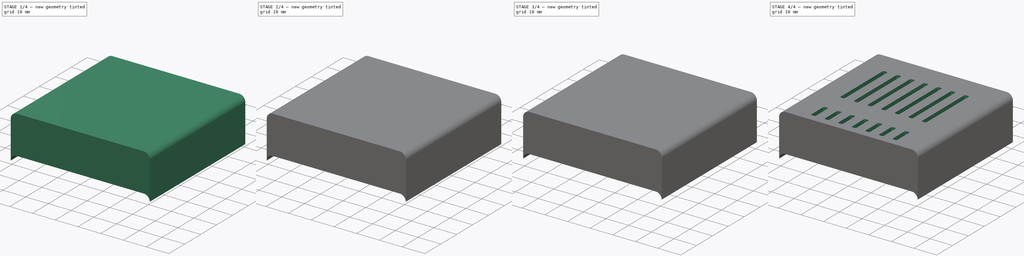
[diagram: build sequence overview — one tinted view per stage of 4, left to right]
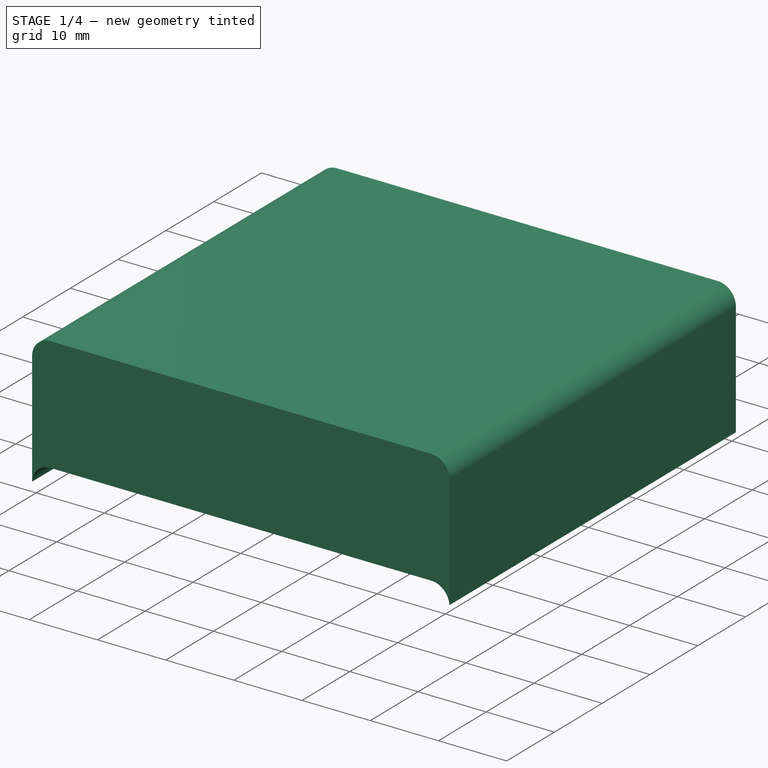
[diagram: stage 1 of 4 — iso view after this stage's code; geometry added in this stage tinted green]
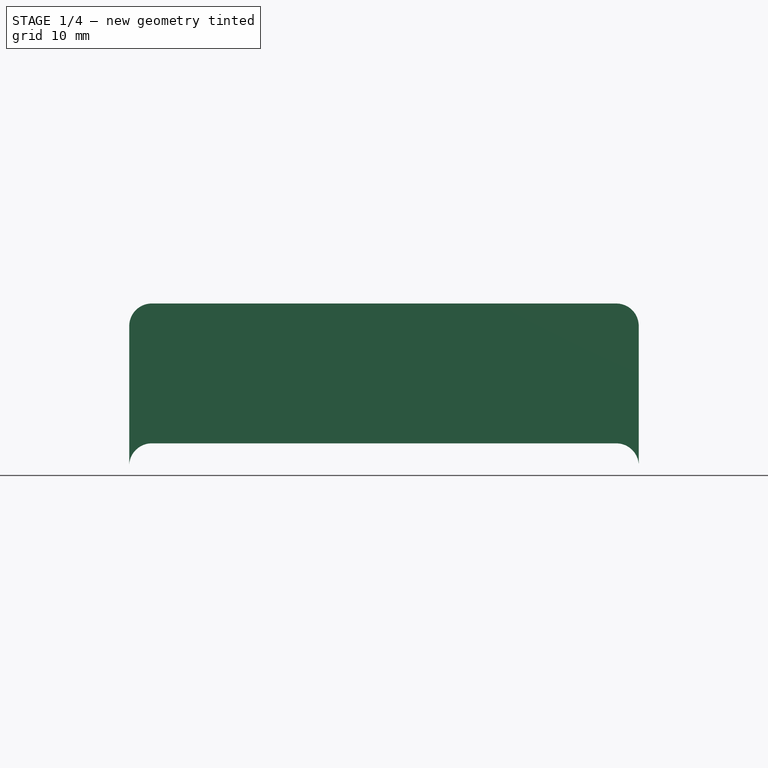
[diagram: stage 1 of 4 — front view after this stage's code; geometry added in this stage tinted green]
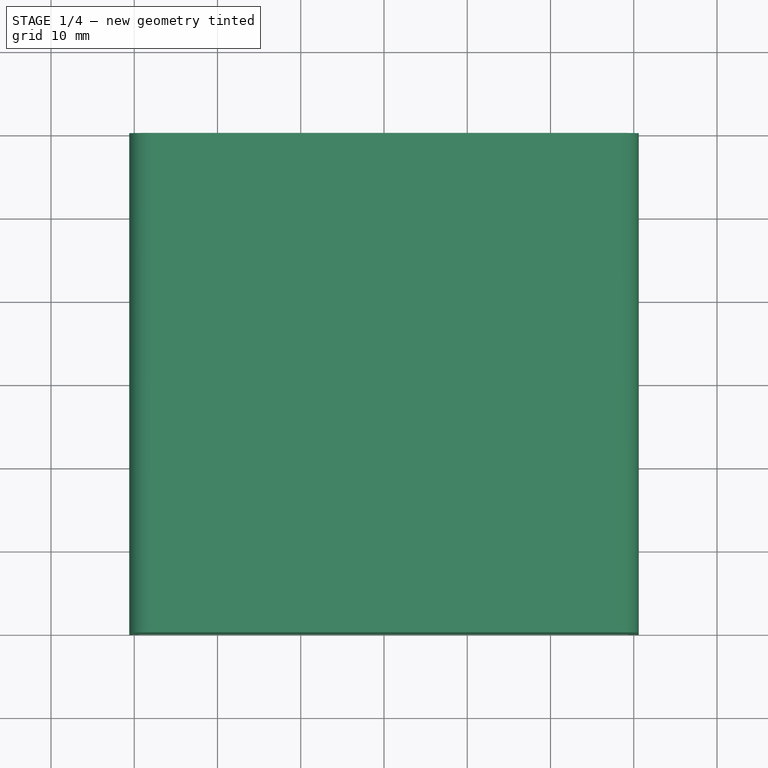
[diagram: stage 1 of 4 — top view after this stage's code; geometry added in this stage tinted green]
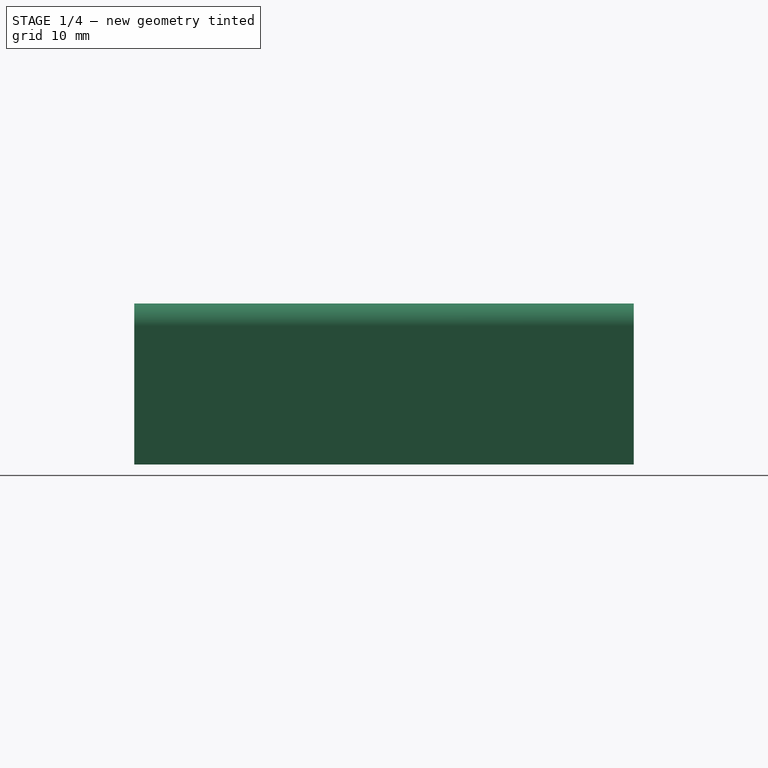
[diagram: stage 1 of 4 — right view after this stage's code; geometry added in this stage tinted green]
FCSTD DOCUMENT  (FreeCAD 0.16R4928 (Git))
Label: rpi_mote_base_v2
License: CreativeCommons Attribution-ShareAlike
LicenseURL: http://creativecommons.org/licenses/by-sa/4.0/
objects: Sketcher::SketchObject×6, PartDesign::Pad×4, Part::Feature×2, PartDesign::Pocket×2, PartDesign::Fillet×2, PartDesign::LinearPattern×1
note: 23 computed .brp shape members not serialized (recipe doc carries the construction recipe); baked Part::Feature solids carry a one-line shape summary decoded from their .brp

FEATURE [Part::Feature] Part__Feature  label="Raspberry Pi B+ Sleeve v1-1 VENT"
  Placement = pos=(0,-0.8,0) rot=(1,0,0;1.5708rad)
  shape: bbox 61.2 x 85.8 x 16.7 mm, 245 faces (baked)
FEATURE [Part::Feature] Part__Feature001  label="Raspberry Pi B+ Sleeve v1-1 VENT001"
  Placement = pos=(0,-0.8,0) rot=(1,0,0;1.5708rad)
  shape: bbox 61.2 x 2.6 x 16.7 mm, 45 faces (baked)
FEATURE [Sketcher::SketchObject] Sketch
  Placement = pos=(0,0,0) rot=(0,0.707107,0.707107;3.14159rad)
  sketch-geometry (9):
    g0: ArcOfCircle CenterX=-27.9 CenterY=22.4613 CenterZ=0 NormalX=0 NormalY=0 NormalZ=1 Radius=2.7 StartAngle=1.5708 EndAngle=3.14159
    g1: LineSegment StartX=-27.9 StartY=25.1613 StartZ=0 EndX=27.9 EndY=25.1613 EndZ=0
    g2: ArcOfCircle CenterX=27.9 CenterY=22.4613 CenterZ=0 NormalX=0 NormalY=0 NormalZ=1 Radius=2.7 StartAngle=6.28319 EndAngle=7.85398
    g3: LineSegment StartX=30.6 StartY=22.4613 StartZ=0 EndX=30.6 EndY=5.5 EndZ=0
    g4: LineSegment [constr] StartX=-30.6 StartY=5.5 StartZ=0 EndX=30.6 EndY=5.5 EndZ=0
    g5: ArcOfCircle CenterX=-27.9048 CenterY=5.66127 CenterZ=0 NormalX=0 NormalY=0 NormalZ=1 Radius=2.7 StartAngle=1.5708 EndAngle=3.20136
    g6: ArcOfCircle CenterX=27.9048 CenterY=5.66127 CenterZ=0 NormalX=0 NormalY=0 NormalZ=1 Radius=2.7 StartAngle=6.22342 EndAngle=7.85577
    g7: LineSegment StartX=27.9 StartY=8.36127 StartZ=0 EndX=-27.9048 EndY=8.36127 EndZ=0
    g8: LineSegment StartX=-30.6 StartY=5.5 StartZ=0 EndX=-30.6 EndY=22.4613 EndZ=0
  constraints (30):
    c: Coincident(g1,g0)
    c: Horizontal(g1)
    c: Tangent(g1,g0)
    c: Radius(g0) = 2.7
    c: Coincident(g2,g1)
    c: Coincident(g3,g2)
    c: Tangent(g3,g2)
    c: Vertical(g3)
    c: Equal(g2,g0)
    c: Tangent(g1,g2)
    c: Symmetric(g1,g0,g-2)
    c: Coincident(g4,g3)
    c: DistanceX(g4) = 61.2
    c: Coincident(g6,g3)
    c: Coincident(g7,g6)
    c: Horizontal(g7)
    c: Coincident(g5,g7)
    c: Equal(g5,g6)
    c: Equal(g6,g0)
    c: DistanceY(g1,g6) = -16.8
    c: DistanceY(g3) = 5.5
    c: Coincident(g8,g4)
    c: Vertical(g8)
    c: Coincident(g8,g0)
    c: Tangent(g8,g0)
    c: Tangent(g5,g7)
    c: Equal(g3,g8)
    c: Coincident(g4,g5)
    c: DistanceX(g6,g3) = 2.7
    c: Tangent(g7,g6)
FEATURE [PartDesign::Pad] Pad
  Length = 60
  Length2 = 100
  Placement = pos=(0,0,0) rot=(0,0.707107,0.707107;3.14159rad)
  Reversed = true
  Sketch = -> Sketch
  Type = 0
FEATURE [Sketcher::SketchObject] Sketch001
  ExternalGeometry = -> [Pad]
  Placement = pos=(0,0,8.36127) rot=(0,1,0;3.14159rad)
  Support = -> Pad [Face1]
  sketch-geometry (5):
    g0: LineSegment StartX=-27.9048 StartY=-2.5 StartZ=0 EndX=27.9 EndY=-2.5 EndZ=0
    g1: LineSegment StartX=27.9 StartY=-2.5 StartZ=0 EndX=27.9 EndY=-57.5 EndZ=0
    g2: LineSegment StartX=27.9 StartY=-57.5 StartZ=0 EndX=-27.9048 EndY=-57.5 EndZ=0
    g3: LineSegment StartX=-27.9048 StartY=-57.5 StartZ=0 EndX=-27.9048 EndY=-2.5 EndZ=0
    g4: GeomPoint [constr] X=27.9 Y=-30 Z=0
  constraints (13):
    c: Coincident(g0,g1)
    c: Coincident(g1,g2)
    c: Coincident(g2,g3)
    c: Coincident(g3,g0)
    c: Horizontal(g0)
    c: Horizontal(g2)
    c: Vertical(g3)
    c: PointOnObject(g1,g-4)
    c: PointOnObject(g0,g-3)
    c: DistanceY(g0,g1) = -55
    c: PointOnObject(g4,g-4)
    c: Symmetric(g-4,g-4,g4)
    c: Symmetric(g0,g1,g4)
FEATURE [PartDesign::Pocket] Pocket
  Length = 14
  Placement = pos=(0,0,0) rot=(0,0.707107,0.707107;3.14159rad)
  Sketch = -> Sketch001
  Type = 0
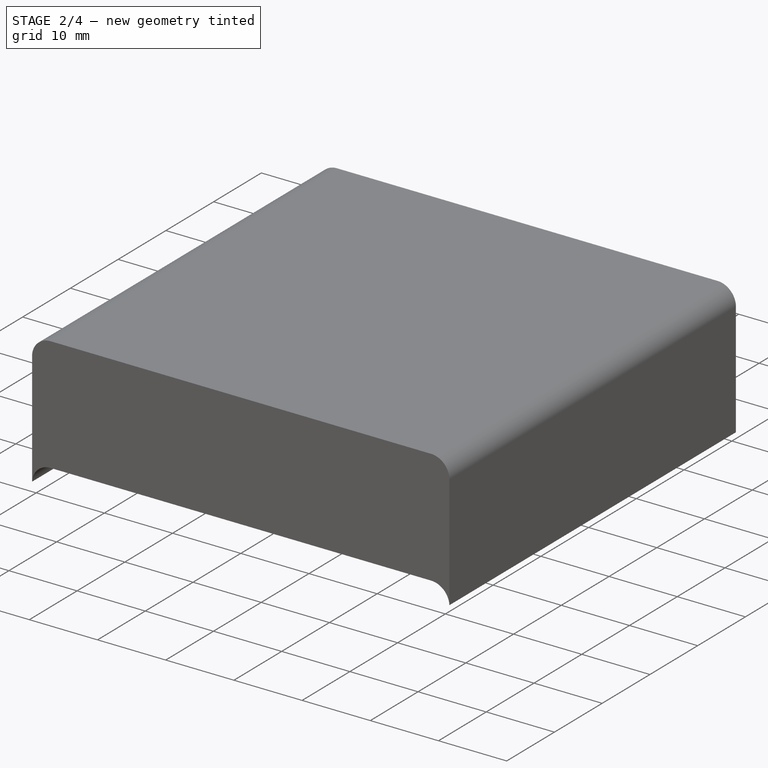
[diagram: stage 2 of 4 — iso view after this stage's code; geometry added in this stage tinted green]
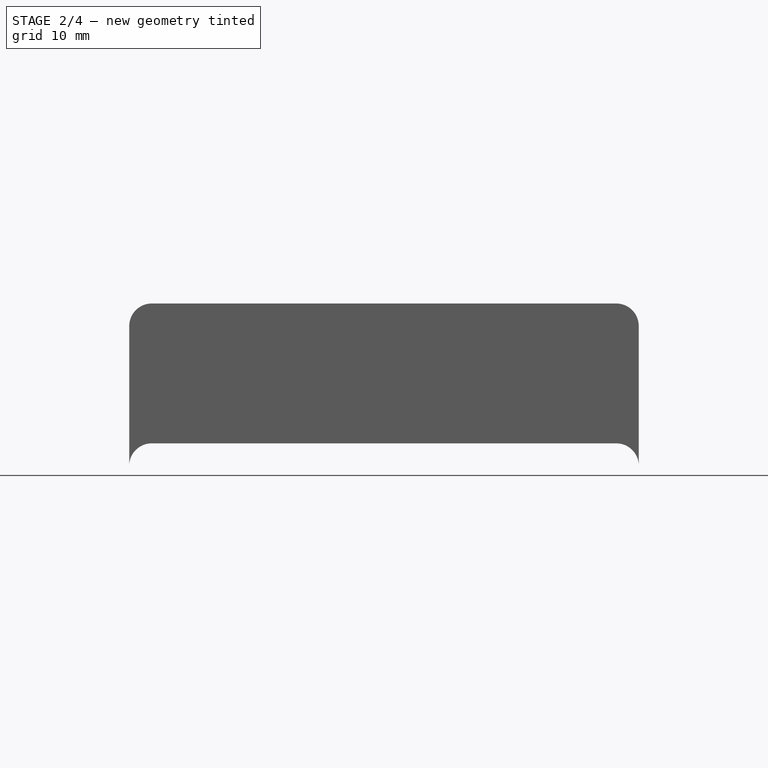
[diagram: stage 2 of 4 — front view after this stage's code; geometry added in this stage tinted green]
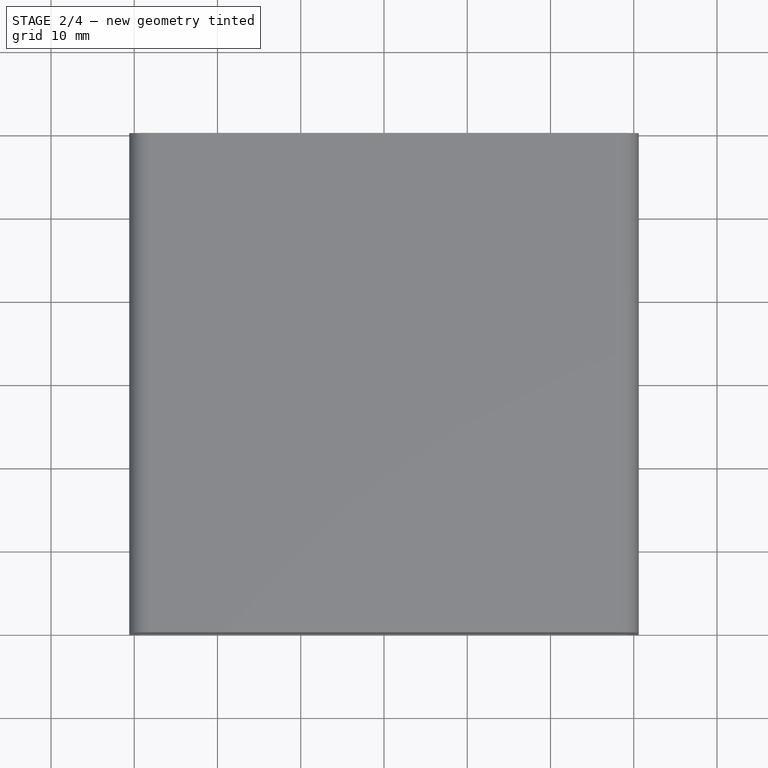
[diagram: stage 2 of 4 — top view after this stage's code; geometry added in this stage tinted green]
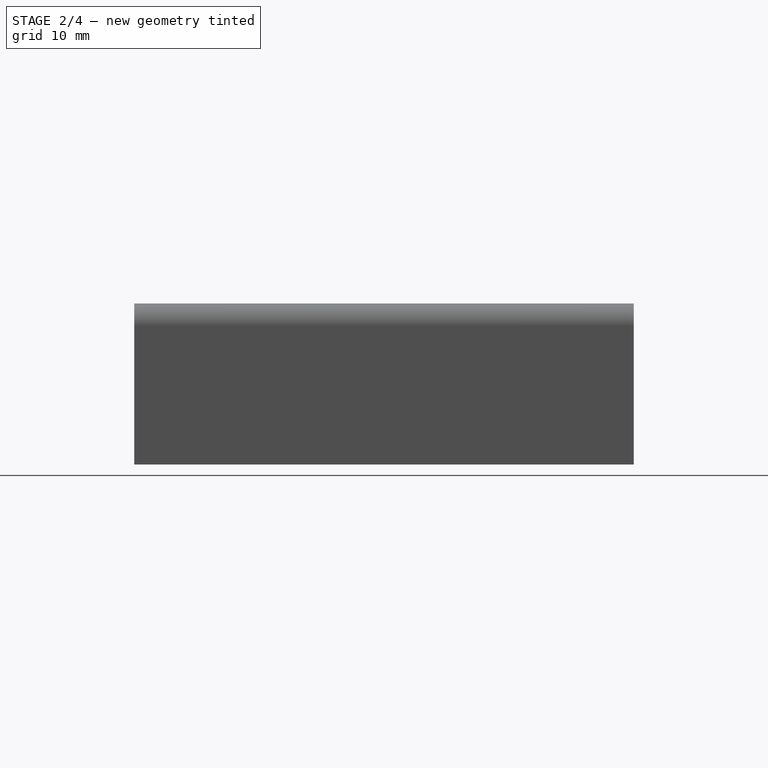
[diagram: stage 2 of 4 — right view after this stage's code; geometry added in this stage tinted green]
FEATURE [PartDesign::Fillet] Fillet
  Base = -> Pocket [Edge36,Edge33]
  Placement = pos=(0,0,0) rot=(0,0.707107,0.707107;3.14159rad)
  Radius = 2
FEATURE [Sketcher::SketchObject] Sketch002
  Placement = pos=(0,-57.5,0) rot=(0,0.707107,0.707107;3.14159rad)
  Support = -> Fillet [Face8]
  sketch-geometry (14):
    g0: LineSegment StartX=-18.955 StartY=22.36 StartZ=0 EndX=-17.085 EndY=22.36 EndZ=0
    g1: LineSegment StartX=-17.085 StartY=22.36 StartZ=0 EndX=-17.085 EndY=8.36 EndZ=0
    g2: LineSegment StartX=-17.085 StartY=8.36 StartZ=0 EndX=-18.955 EndY=8.36 EndZ=0
    g3: LineSegment StartX=-18.955 StartY=8.36 StartZ=0 EndX=-18.955 EndY=22.36 EndZ=0
    g4: LineSegment StartX=18.955 StartY=22.36 StartZ=0 EndX=17.085 EndY=22.36 EndZ=0
    g5: LineSegment StartX=17.085 StartY=22.36 StartZ=0 EndX=17.085 EndY=8.36 EndZ=0
    g6: LineSegment StartX=17.085 StartY=8.36 StartZ=0 EndX=18.955 EndY=8.36 EndZ=0
    g7: LineSegment StartX=18.955 StartY=8.36 StartZ=0 EndX=18.955 EndY=22.36 EndZ=0
    g8: LineSegment StartX=-0.935 StartY=22.36 StartZ=0 EndX=0.935 EndY=22.36 EndZ=0
    g9: LineSegment StartX=0.935 StartY=22.36 StartZ=0 EndX=0.935 EndY=8.36 EndZ=0
    g10: LineSegment StartX=0.935 StartY=8.36 StartZ=0 EndX=-0.935 EndY=8.36 EndZ=0
    g11: LineSegment StartX=-0.935 StartY=8.36 StartZ=0 EndX=-0.935 EndY=22.36 EndZ=0
    g12: LineSegment [constr] StartX=-17.085 StartY=8.36 StartZ=0 EndX=-0.935 EndY=8.36 EndZ=0
    g13: LineSegment [constr] StartX=0.935 StartY=8.36 StartZ=0 EndX=17.085 EndY=8.36 EndZ=0
  constraints (40):
    c: Coincident(g0,g1)
    c: Coincident(g1,g2)
    c: Coincident(g2,g3)
    c: Coincident(g3,g0)
    c: Horizontal(g0)
    c: Horizontal(g2)
    c: Vertical(g1)
    c: Vertical(g3)
    c: Coincident(g4,g5)
    c: Coincident(g5,g6)
    c: Coincident(g6,g7)
    c: Coincident(g7,g4)
    c: Horizontal(g4)
    c: Horizontal(g6)
    c: Vertical(g5)
    c: Vertical(g7)
    c: Coincident(g8,g9)
    c: Coincident(g9,g10)
    c: Coincident(g10,g11)
    c: Coincident(g11,g8)
    c: Horizontal(g8)
    c: Horizontal(g10)
    c: Vertical(g9)
    c: Vertical(g11)
    c: Coincident(g12,g1)
    c: Coincident(g12,g10)
    c: Horizontal(g12)
    c: Equal(g3,g11)
    c: Equal(g11,g7)
    c: Equal(g4,g8)
    c: Equal(g8,g0)
    c: Symmetric(g9,g10,g-2)
    c: DistanceX(g8) = 1.87
    c: Coincident(g13,g9)
    c: Coincident(g13,g5)
    c: Horizontal(g13)
    c: DistanceX(g13) = 16.15
    c: Equal(g12,g13)
    c: DistanceY(g10) = 8.36
    c: DistanceY(g11) = 14
FEATURE [PartDesign::Pad] Pad001
  Length = 10
  Length2 = 100
  Placement = pos=(0,0,0) rot=(0,0.707107,0.707107;3.14159rad)
  Sketch = -> Sketch002
  Type = 0
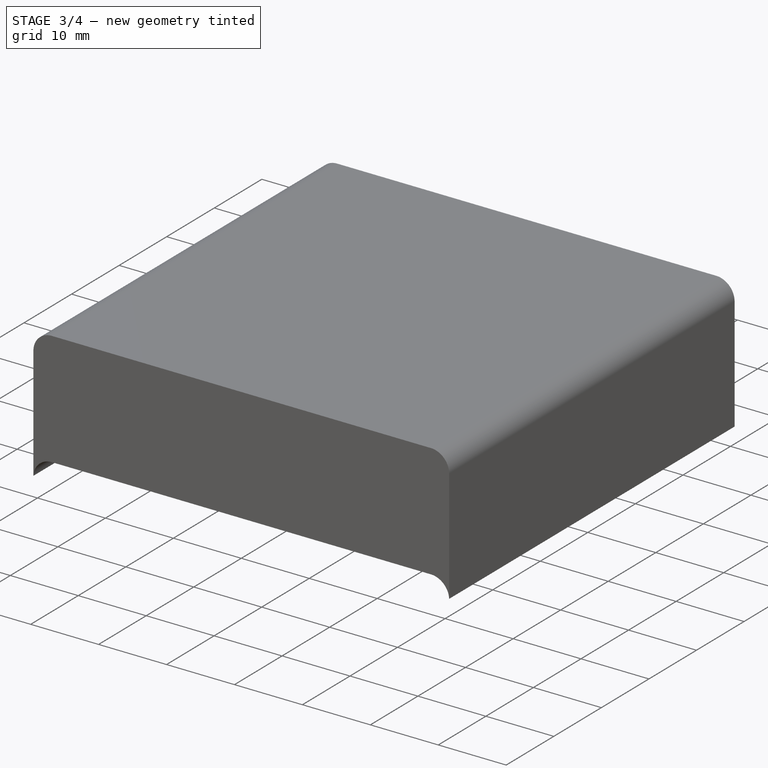
[diagram: stage 3 of 4 — iso view after this stage's code; geometry added in this stage tinted green]
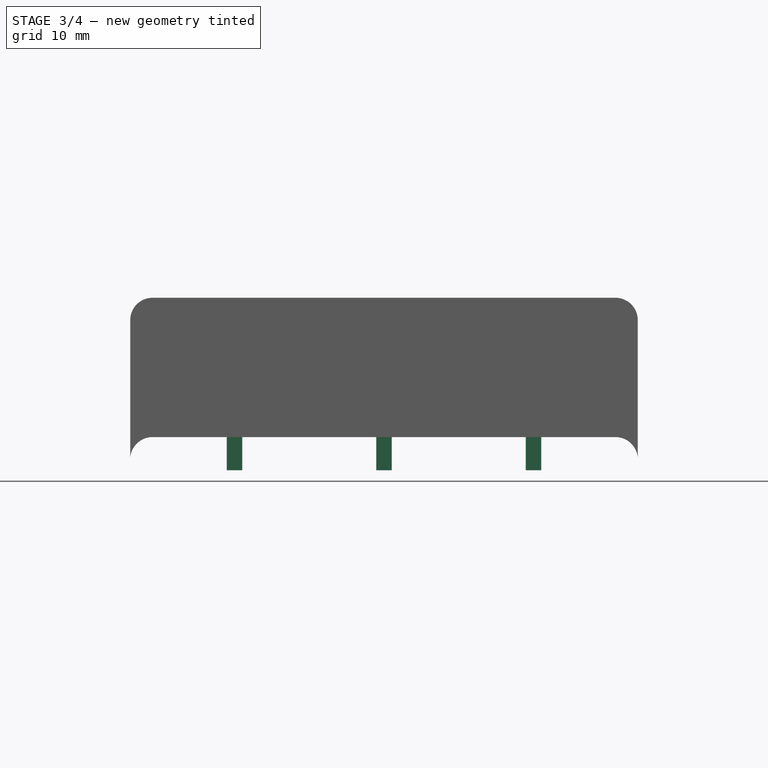
[diagram: stage 3 of 4 — front view after this stage's code; geometry added in this stage tinted green]
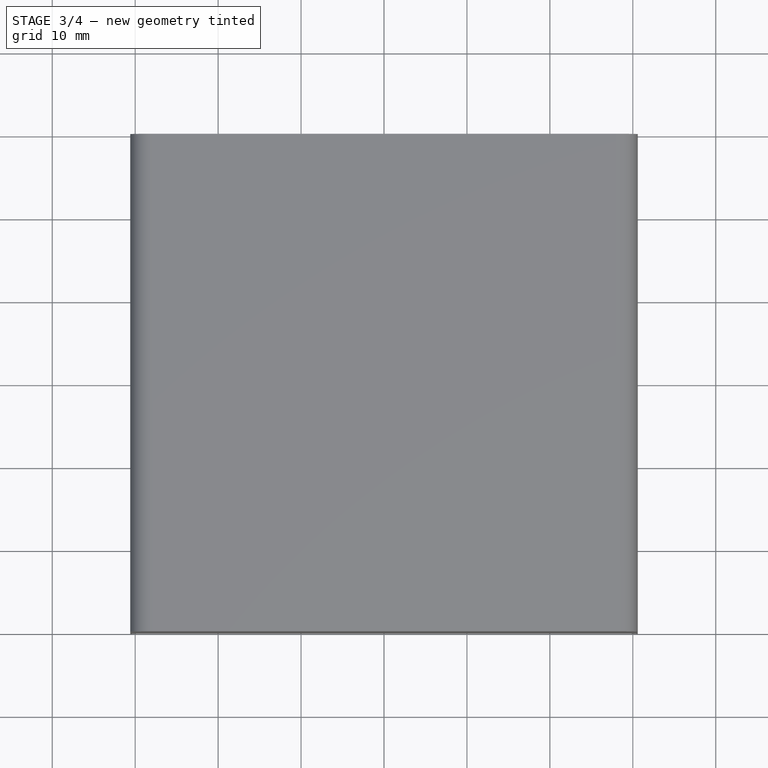
[diagram: stage 3 of 4 — top view after this stage's code; geometry added in this stage tinted green]
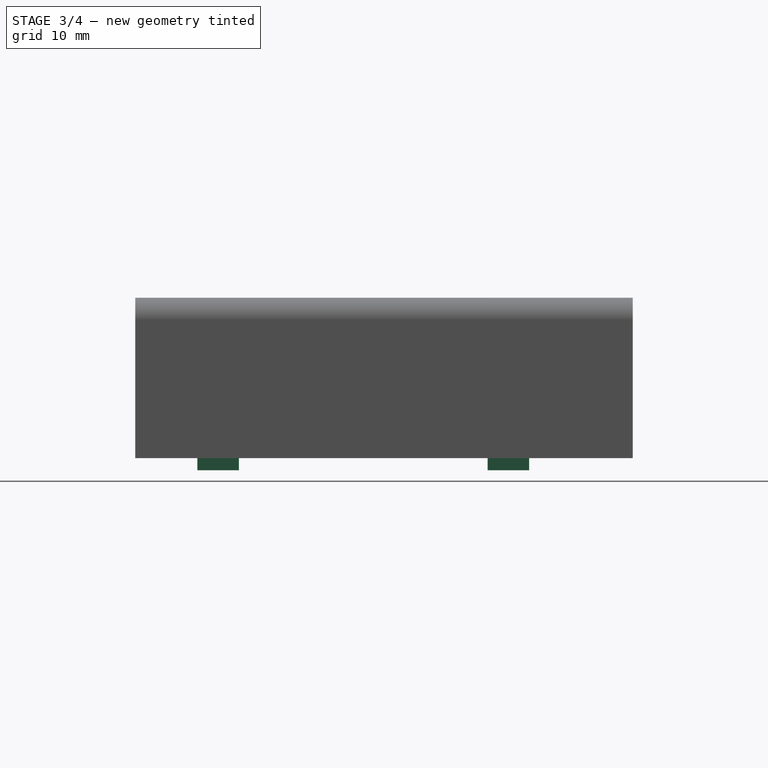
[diagram: stage 3 of 4 — right view after this stage's code; geometry added in this stage tinted green]
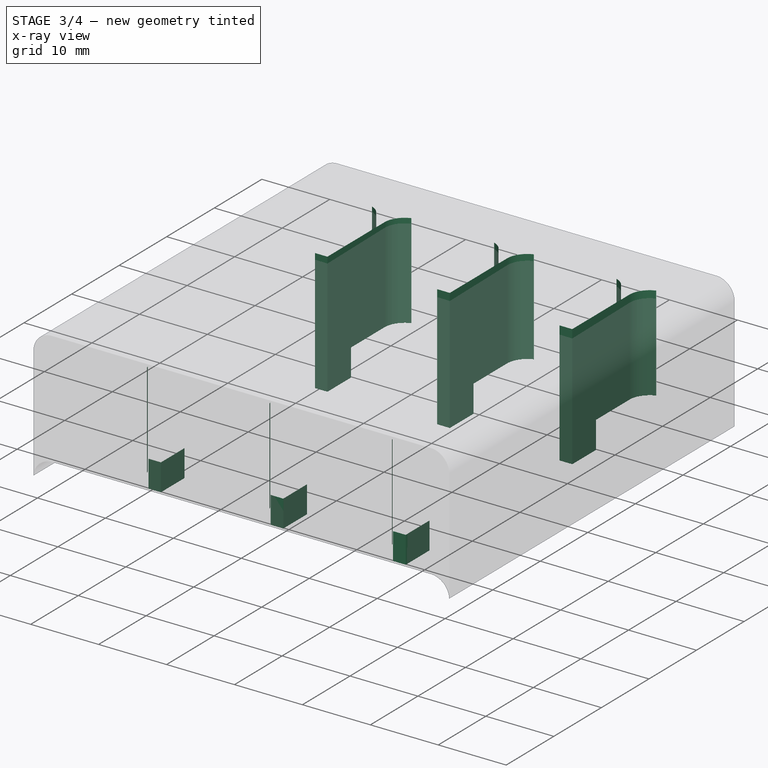
[diagram: stage 3 of 4 — x-ray composite at the iso view; earlier geometry ghosted, this stage's added geometry solid]
FEATURE [Sketcher::SketchObject] Sketch003
  Placement = pos=(0,-2.5,0) rot=(0,-0.707107,0.707107;3.14159rad)
  Support = -> Pad001 [Face1]
  sketch-geometry (14):
    g0: LineSegment StartX=-0.935 StartY=-8.36 StartZ=0 EndX=0.935 EndY=-8.36 EndZ=0
    g1: LineSegment StartX=0.935 StartY=-8.36 StartZ=0 EndX=0.935 EndY=-22.36 EndZ=0
    g2: LineSegment StartX=0.935 StartY=-22.36 StartZ=0 EndX=-0.935 EndY=-22.36 EndZ=0
    g3: LineSegment StartX=-0.935 StartY=-22.36 StartZ=0 EndX=-0.935 EndY=-8.36 EndZ=0
    g4: LineSegment StartX=17.085 StartY=-8.36 StartZ=0 EndX=18.955 EndY=-8.36 EndZ=0
    g5: LineSegment StartX=18.955 StartY=-8.36 StartZ=0 EndX=18.955 EndY=-22.36 EndZ=0
    g6: LineSegment StartX=18.955 StartY=-22.36 StartZ=0 EndX=17.085 EndY=-22.36 EndZ=0
    g7: LineSegment StartX=17.085 StartY=-22.36 StartZ=0 EndX=17.085 EndY=-8.36 EndZ=0
    g8: LineSegment StartX=-18.955 StartY=-8.36 StartZ=0 EndX=-17.085 EndY=-8.36 EndZ=0
    g9: LineSegment StartX=-17.085 StartY=-8.36 StartZ=0 EndX=-17.085 EndY=-22.36 EndZ=0
    g10: LineSegment StartX=-17.085 StartY=-22.36 StartZ=0 EndX=-18.955 EndY=-22.36 EndZ=0
    g11: LineSegment StartX=-18.955 StartY=-22.36 StartZ=0 EndX=-18.955 EndY=-8.36 EndZ=0
    g12: LineSegment [constr] StartX=-0.935 StartY=-22.36 StartZ=0 EndX=-17.085 EndY=-22.36 EndZ=0
    g13: LineSegment [constr] StartX=0.935 StartY=-22.36 StartZ=0 EndX=17.085 EndY=-22.36 EndZ=0
  constraints (40):
    c: Coincident(g0,g1)
    c: Coincident(g1,g2)
    c: Coincident(g2,g3)
    c: Coincident(g3,g0)
    c: Horizontal(g0)
    c: Horizontal(g2)
    c: Vertical(g1)
    c: Vertical(g3)
    c: Coincident(g4,g5)
    c: Coincident(g5,g6)
    c: Coincident(g6,g7)
    c: Coincident(g7,g4)
    c: Horizontal(g4)
    c: Horizontal(g6)
    c: Vertical(g5)
    c: Vertical(g7)
    c: Coincident(g8,g9)
    c: Coincident(g9,g10)
    c: Coincident(g10,g11)
    c: Coincident(g11,g8)
    c: Horizontal(g8)
    c: Horizontal(g10)
    c: Vertical(g9)
    c: Vertical(g11)
    c: Equal(g10,g2)
    c: Equal(g2,g6)
    c: Equal(g5,g1)
    c: Equal(g1,g9)
    c: DistanceX(g2) = -1.87
    c: Symmetric(g1,g2,g-2)
    c: Coincident(g12,g2)
    c: Coincident(g12,g9)
    c: Horizontal(g12)
    c: Coincident(g13,g1)
    c: Coincident(g13,g6)
    c: Horizontal(g13)
    c: DistanceX(g13) = 16.15
    c: DistanceY(g3) = 14
    c: DistanceY(g0) = -8.36
    c: Equal(g12,g13)
FEATURE [PartDesign::Pad] Pad002
  Length = 15
  Length2 = 100
  Placement = pos=(0,0,0) rot=(0,0.707107,0.707107;3.14159rad)
  Sketch = -> Sketch003
  Type = 0
FEATURE [Sketcher::SketchObject] Sketch004
  ExternalGeometry = -> [Pad002]
  Placement = pos=(0,0,8.36) rot=(0,1,0;3.14159rad)
  Support = -> Pad002 [Face39]
  sketch-geometry (24):
    g0: LineSegment StartX=-0.935 StartY=-47.5 StartZ=0 EndX=0.935 EndY=-47.5 EndZ=0
    g1: LineSegment StartX=0.935 StartY=-47.5 StartZ=0 EndX=0.935 EndY=-52.5 EndZ=0
    g2: LineSegment StartX=0.935 StartY=-52.5 StartZ=0 EndX=-0.935 EndY=-52.5 EndZ=0
    g3: LineSegment StartX=-0.935 StartY=-52.5 StartZ=0 EndX=-0.935 EndY=-47.5 EndZ=0
    g4: LineSegment StartX=-18.955 StartY=-47.5 StartZ=0 EndX=-17.085 EndY=-47.5 EndZ=0
    g5: LineSegment StartX=-17.085 StartY=-47.5 StartZ=0 EndX=-17.085 EndY=-52.5 EndZ=0
    g6: LineSegment StartX=-17.085 StartY=-52.5 StartZ=0 EndX=-18.955 EndY=-52.5 EndZ=0
    g7: LineSegment StartX=-18.955 StartY=-52.5 StartZ=0 EndX=-18.955 EndY=-47.5 EndZ=0
    g8: LineSegment StartX=17.085 StartY=-47.5 StartZ=0 EndX=18.955 EndY=-47.5 EndZ=0
    g9: LineSegment StartX=18.955 StartY=-47.5 StartZ=0 EndX=18.955 EndY=-52.5 EndZ=0
    g10: LineSegment StartX=18.955 StartY=-52.5 StartZ=0 EndX=17.085 EndY=-52.5 EndZ=0
    g11: LineSegment StartX=17.085 StartY=-52.5 StartZ=0 EndX=17.085 EndY=-47.5 EndZ=0
    g12: LineSegment StartX=-18.955 StartY=-12.5 StartZ=0 EndX=-17.085 EndY=-12.5 EndZ=0
    g13: LineSegment StartX=-17.085 StartY=-12.5 StartZ=0 EndX=-17.085 EndY=-17.5 EndZ=0
    g14: LineSegment StartX=-17.085 StartY=-17.5 StartZ=0 EndX=-18.955 EndY=-17.5 EndZ=0
    g15: LineSegment StartX=-18.955 StartY=-17.5 StartZ=0 EndX=-18.955 EndY=-12.5 EndZ=0
    g16: LineSegment StartX=-0.935 StartY=-12.5 StartZ=0 EndX=0.935 EndY=-12.5 EndZ=0
    g17: LineSegment StartX=0.935 StartY=-12.5 StartZ=0 EndX=0.935 EndY=-17.5 EndZ=0
    g18: LineSegment StartX=0.935 StartY=-17.5 StartZ=0 EndX=-0.935 EndY=-17.5 EndZ=0
    g19: LineSegment StartX=-0.935 StartY=-17.5 StartZ=0 EndX=-0.935 EndY=-12.5 EndZ=0
    g20: LineSegment StartX=17.085 StartY=-12.5 StartZ=0 EndX=18.955 EndY=-12.5 EndZ=0
    g21: LineSegment StartX=18.955 StartY=-12.5 StartZ=0 EndX=18.955 EndY=-17.5 EndZ=0
    g22: LineSegment StartX=18.955 StartY=-17.5 StartZ=0 EndX=17.085 EndY=-17.5 EndZ=0
    g23: LineSegment StartX=17.085 StartY=-17.5 StartZ=0 EndX=17.085 EndY=-12.5 EndZ=0
  constraints (66):
    c: Coincident(g0,g1)
    c: Coincident(g1,g2)
    c: Coincident(g2,g3)
    c: Coincident(g3,g0)
    c: Horizontal(g0)
    c: Horizontal(g2)
    c: Vertical(g1)
    c: Vertical(g3)
    c: Coincident(g4,g5)
    c: Coincident(g5,g6)
    c: Coincident(g6,g7)
    c: Coincident(g7,g4)
    c: Horizontal(g4)
    c: Horizontal(g6)
    c: Vertical(g5)
    c: Vertical(g7)
    c: Coincident(g8,g9)
    c: Coincident(g9,g10)
    c: Coincident(g10,g11)
    c: Coincident(g11,g8)
    c: Horizontal(g8)
    c: Horizontal(g10)
    c: Vertical(g9)
    c: Vertical(g11)
    c: Coincident(g12,g13)
    c: Coincident(g13,g14)
    c: Coincident(g14,g15)
    c: Coincident(g15,g12)
    c: Horizontal(g12)
    c: Horizontal(g14)
    c: Vertical(g13)
    c: Vertical(g15)
    c: Coincident(g16,g17)
    c: Coincident(g17,g18)
    c: Coincident(g18,g19)
    c: Coincident(g19,g16)
    c: Horizontal(g16)
    c: Horizontal(g18)
    c: Vertical(g17)
    c: Vertical(g19)
    c: Coincident(g20,g21)
    c: Coincident(g21,g22)
    c: Coincident(g22,g23)
    c: Coincident(g23,g20)
    c: Horizontal(g20)
    c: Horizontal(g22)
    c: Vertical(g21)
    c: Vertical(g23)
    c: Coincident(g-3,g13)
    c: Equal(g14,g18)
    c: Equal(g18,g22)
    c: Equal(g22,g4)
    c: Equal(g4,g0)
    c: Equal(g0,g8)
    c: Equal(g17,g5)
    c: Equal(g5,g13)
    c: Equal(g13,g21)
    c: Equal(g21,g1)
    c: Equal(g1,g9)
    c: Coincident(g4,g-6)
    c: Coincident(g4,g-6)
    c: Coincident(g0,g-7)
    c: Coincident(g8,g-8)
    c: Coincident(g18,g-4)
    c: Coincident(g22,g-5)
    c: DistanceY(g3) = 5
FEATURE [PartDesign::Pad] Pad003
  Length = 4
  Length2 = 100
  Placement = pos=(0,0,0) rot=(0,0.707107,0.707107;3.14159rad)
  Sketch = -> Sketch004
  Type = 0
FEATURE [PartDesign::Fillet] Fillet001
  Base = -> Pad003 [Edge17,Edge13,Edge9,Edge15,Edge11,Edge7,Edge40,Edge36,Edge32,Edge38,Edge34,Edge30]
  Placement = pos=(0,0,0) rot=(0,0.707107,0.707107;3.14159rad)
  Radius = 3
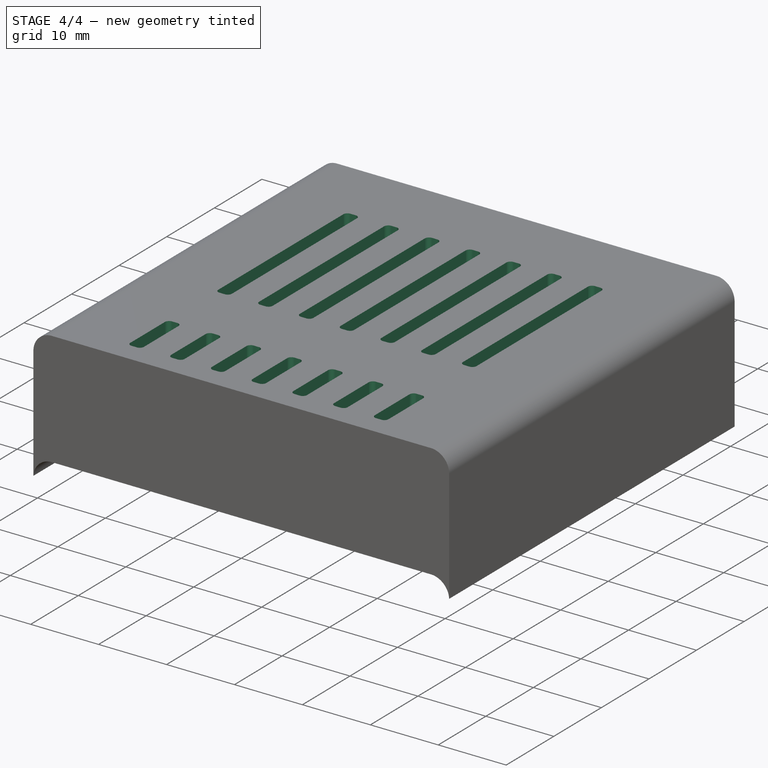
[diagram: stage 4 of 4 — iso view after this stage's code; geometry added in this stage tinted green]
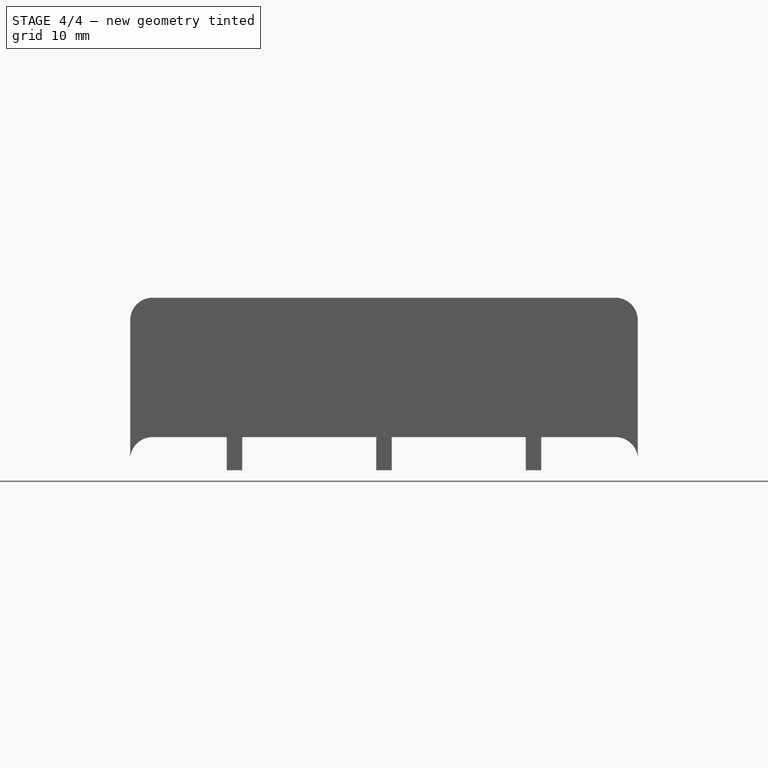
[diagram: stage 4 of 4 — front view after this stage's code; geometry added in this stage tinted green]
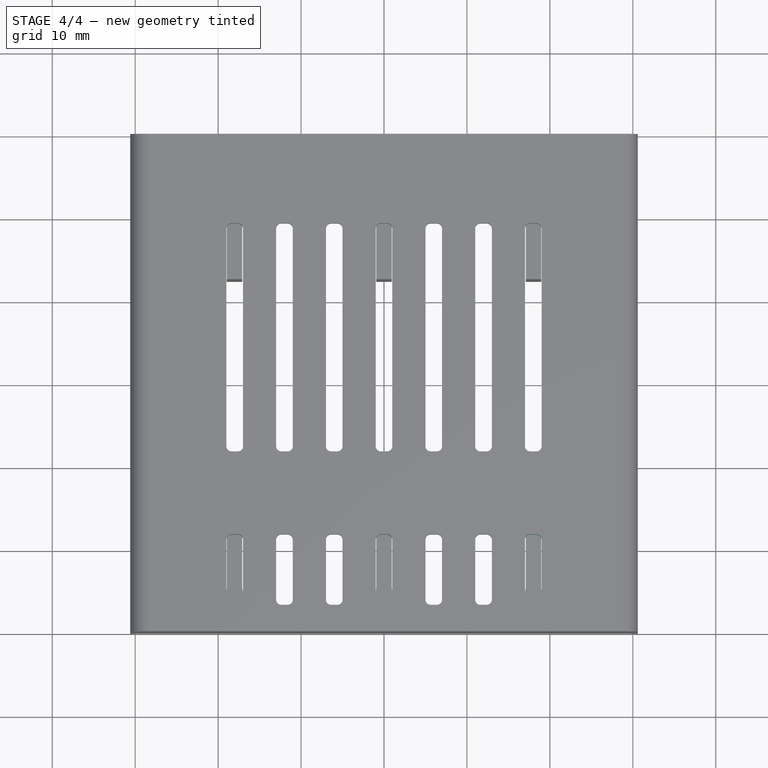
[diagram: stage 4 of 4 — top view after this stage's code; geometry added in this stage tinted green]
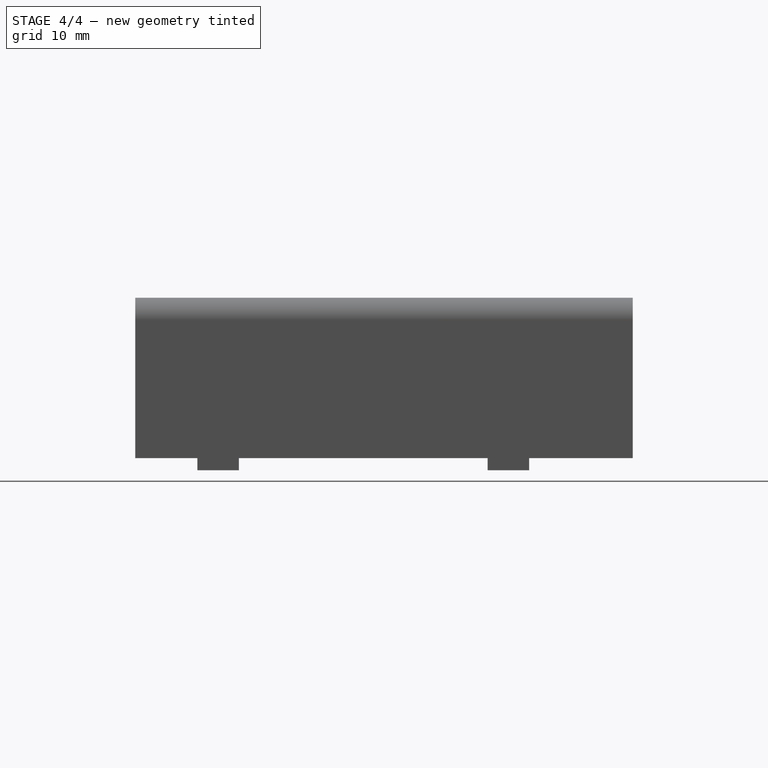
[diagram: stage 4 of 4 — right view after this stage's code; geometry added in this stage tinted green]
FEATURE [Sketcher::SketchObject] Sketch005
  Placement = pos=(0,0,25.1613) rot=(0,0,1;0rad)
  Support = -> Fillet001 [Face41]
  sketch-geometry (21):
    g0: LineSegment [constr] StartX=17 StartY=-11.4749 StartZ=0 EndX=19 EndY=-11.4749 EndZ=0
    g1: LineSegment StartX=19 StartY=-11.4749 StartZ=0 EndX=19 EndY=-37.7439 EndZ=0
    g2: LineSegment [constr] StartX=19 StartY=-37.7439 StartZ=0 EndX=17 EndY=-37.7439 EndZ=0
    g3: LineSegment StartX=17 StartY=-37.7439 StartZ=0 EndX=17 EndY=-11.4749 EndZ=0
    g4: ArcOfCircle CenterX=17.6147 CenterY=-37.6835 CenterZ=0 NormalX=0 NormalY=0 NormalZ=1 Radius=0.617617 StartAngle=3.23961 EndAngle=4.71239
    g5: LineSegment StartX=17.6147 StartY=-38.3011 StartZ=0 EndX=18.3853 EndY=-38.3011 EndZ=0
    g6: ArcOfCircle CenterX=18.3853 CenterY=-37.6835 CenterZ=0 NormalX=0 NormalY=0 NormalZ=1 Radius=0.617615 StartAngle=4.71239 EndAngle=6.18517
    g7: LineSegment StartX=17.6147 StartY=-10.7968 StartZ=0 EndX=18.3853 EndY=-10.7968 EndZ=0
    g8: ArcOfCircle CenterX=17.6147 CenterY=-11.4145 CenterZ=0 NormalX=0 NormalY=0 NormalZ=1 Radius=0.617617 StartAngle=1.5708 EndAngle=3.23962
    g9: ArcOfCircle CenterX=18.3853 CenterY=-11.4145 CenterZ=0 NormalX=0 NormalY=0 NormalZ=1 Radius=0.617617 StartAngle=6.18516 EndAngle=7.85398
    g10: LineSegment [constr] StartX=17 StartY=-48.8596 StartZ=0 EndX=19 EndY=-48.8596 EndZ=0
    g11: LineSegment StartX=19 StartY=-48.8596 StartZ=0 EndX=19 EndY=-56.2435 EndZ=0
    g12: LineSegment [constr] StartX=19 StartY=-56.2435 StartZ=0 EndX=17 EndY=-56.2435 EndZ=0
    g13: LineSegment StartX=17 StartY=-56.2435 StartZ=0 EndX=17 EndY=-48.8596 EndZ=0
    g14: LineSegment StartX=17.6147 StartY=-48.3024 StartZ=0 EndX=18.3853 EndY=-48.3024 EndZ=0
    g15: LineSegment StartX=17.6146 StartY=-56.8006 StartZ=0 EndX=18.3853 EndY=-56.8006 EndZ=0
    g16: ArcOfCircle CenterX=18.3853 CenterY=-48.92 CenterZ=0 NormalX=0 NormalY=0 NormalZ=1 Radius=0.617617 StartAngle=0.0980152 EndAngle=1.5708
    g17: ArcOfCircle CenterX=17.6146 CenterY=-48.92 CenterZ=0 NormalX=0 NormalY=0 NormalZ=1 Radius=0.617617 StartAngle=1.57079 EndAngle=3.04358
    g18: ArcOfCircle CenterX=18.3853 CenterY=-56.183 CenterZ=0 NormalX=0 NormalY=0 NormalZ=1 Radius=0.617617 StartAngle=4.71238 EndAngle=6.18517
    g19: ArcOfCircle CenterX=17.6146 CenterY=-56.183 CenterZ=0 NormalX=0 NormalY=0 NormalZ=1 Radius=0.617617 StartAngle=3.23961 EndAngle=4.71239
    g20: LineSegment [constr] StartX=19 StartY=-48.8596 StartZ=0 EndX=19 EndY=-37.7439 EndZ=0
  constraints (67):
    c: Coincident(g0,g1)
    c: Coincident(g1,g2)
    c: Coincident(g2,g3)
    c: Coincident(g3,g0)
    c: Horizontal(g0)
    c: Horizontal(g2)
    c: Vertical(g1)
    c: Vertical(g3)
    c: DistanceX(g2) = -2
    c: Coincident(g4,g2)
    c: DistanceY(g1) = -37.7439
    c: Coincident(g5,g4)
    c: Horizontal(g5)
    c: Coincident(g6,g5)
    c: Coincident(g6,g1)
    c: Tangent(g5,g6)
    c: Tangent(g5,g4)
    c: DistanceY(g5,g1) = 0.557178
    c: Radius(g4) = 0.617617
    c: Horizontal(g7)
    c: Coincident(g8,g0)
    c: Coincident(g8,g7)
    c: Coincident(g9,g7)
    c: Coincident(g9,g0)
    c: Tangent(g7,g9)
    c: Tangent(g7,g8)
    c: Equal(g7,g5)
    c: Equal(g4,g8)
    c: Equal(g8,g9)
    c: DistanceX(g5) = 0.770696
    c: Equal(g7,g5)
    c: DistanceX(g0) = 17
    c: DistanceY(g1) = -26.269
    c: Coincident(g10,g11)
    c: Coincident(g11,g12)
    c: Coincident(g12,g13)
    c: Coincident(g13,g10)
    c: Horizontal(g10)
    c: Horizontal(g12)
    c: Vertical(g11)
    c: Vertical(g13)
    c: Horizontal(g14)
    c: Horizontal(g15)
    c: Coincident(g16,g14)
    c: Coincident(g16,g10)
    c: Coincident(g17,g14)
    c: Coincident(g17,g10)
    c: Coincident(g18,g15)
    c: Coincident(g18,g11)
    c: Coincident(g19,g12)
    c: Coincident(g19,g15)
    c: Equal(g15,g14)
    c: Equal(g19,g18)
    c: Equal(g18,g16)
    c: Equal(g16,g17)
    c: Equal(g17,g4)
    c: Equal(g5,g14)
    c: Tangent(g14,g16)
    c: Tangent(g17,g14)
    c: Tangent(g19,g15)
    c: Coincident(g20,g10)
    c: Coincident(g20,g1)
    c: Vertical(g20)
    c: DistanceY(g14,g10) = -0.557178
    c: DistanceY(g11,g15) = -0.557178
    c: DistanceY(g20) = 11.1157
    c: DistanceY(g11) = -7.38385
FEATURE [PartDesign::Pocket] Pocket001
  Length = 2.8
  Placement = pos=(0,0,0) rot=(0,0.707107,0.707107;3.14159rad)
  Sketch = -> Sketch005
  Type = 0
FEATURE [PartDesign::LinearPattern] LinearPattern
  Direction = -> Pocket001 [Face55]
  Length = 36
  Occurrences = 7
  Originals = -> [Pocket001]
  Placement = pos=(0,0,0) rot=(0,0.707107,0.707107;3.14159rad)
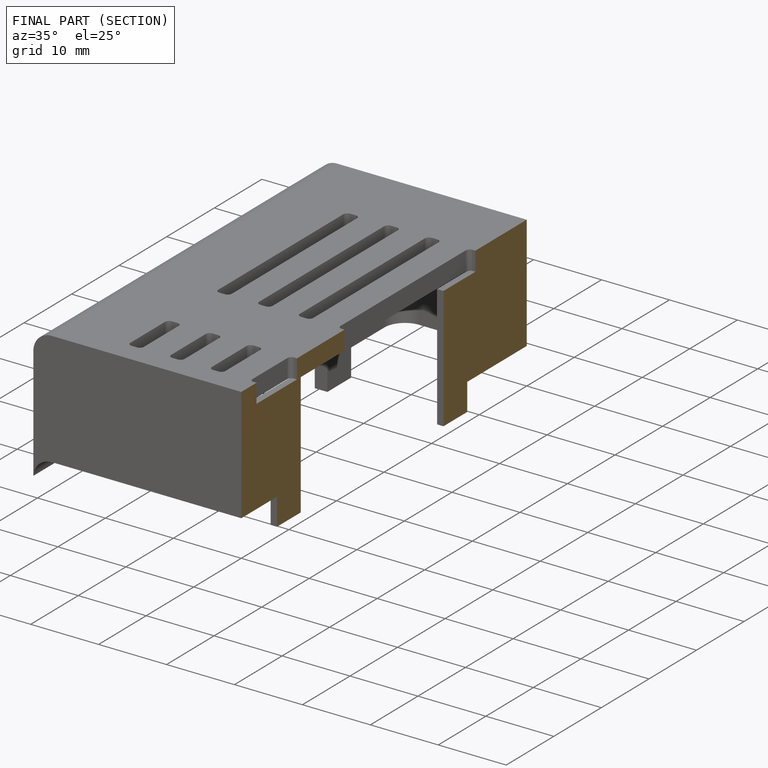
[diagram: finished part — half-section view (interior)]
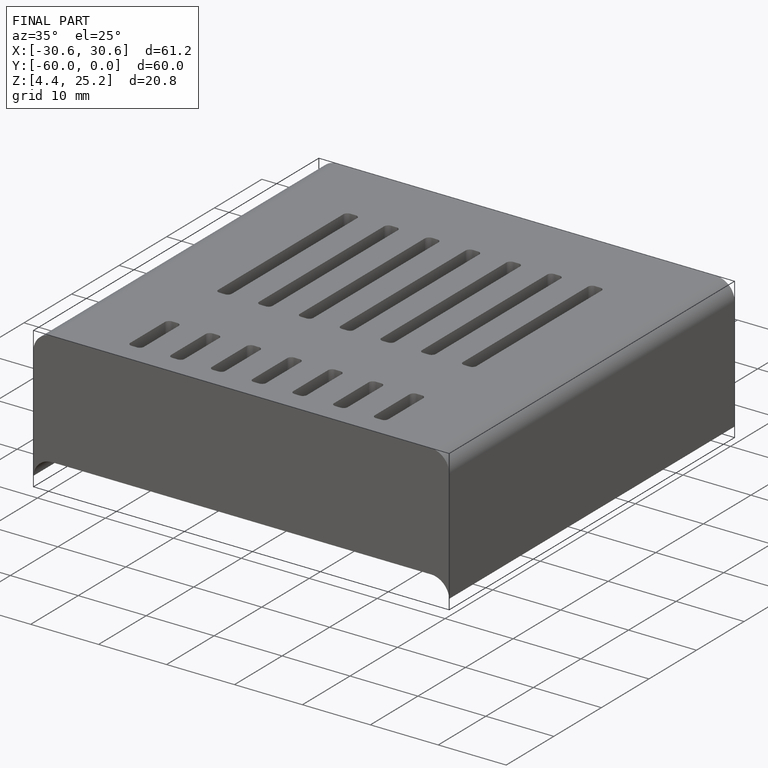
[diagram: finished part — iso view with bounding-box wireframe]
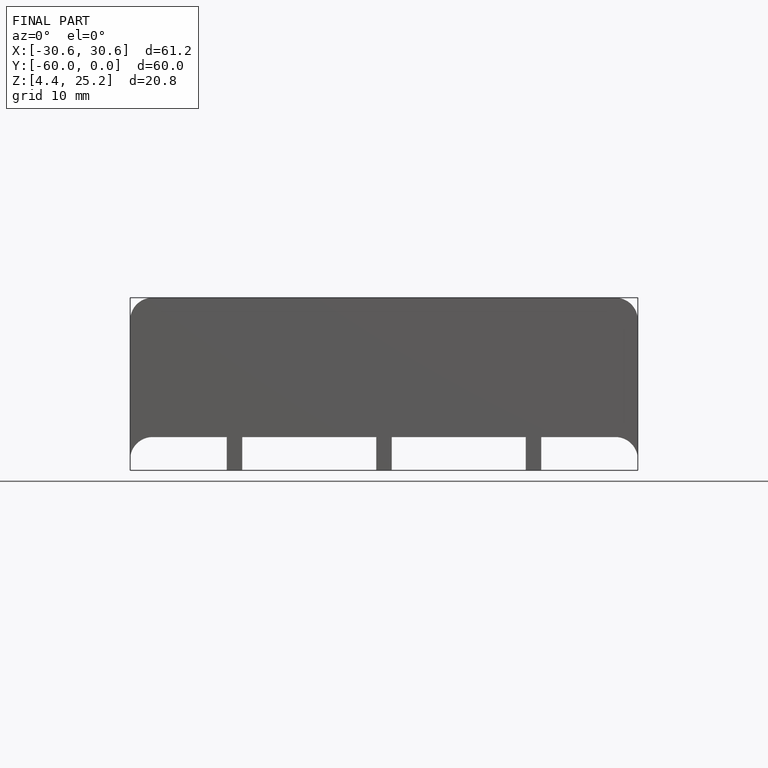
[diagram: finished part — front view with bounding-box wireframe]
